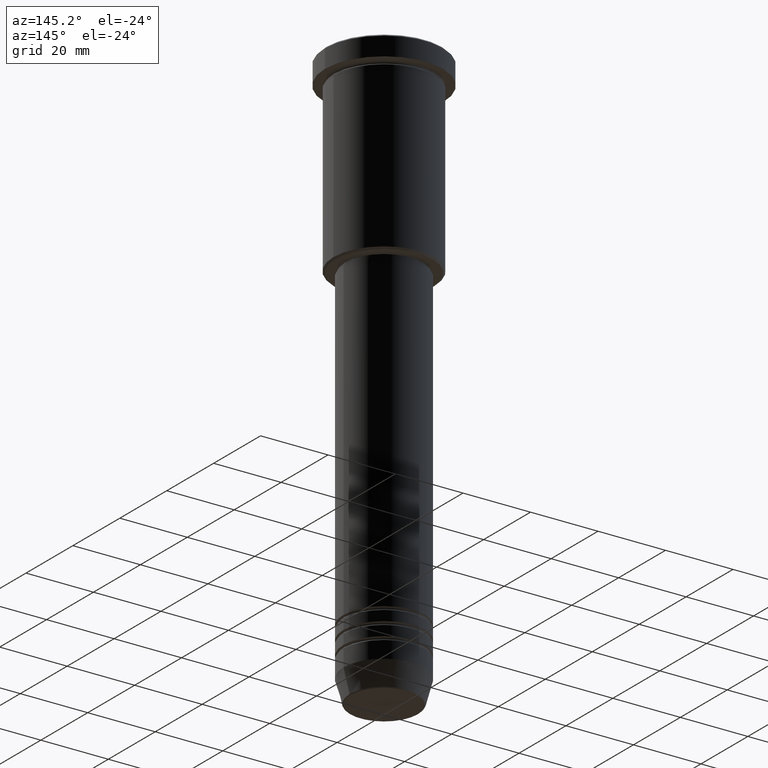
[diagram: clean part render]
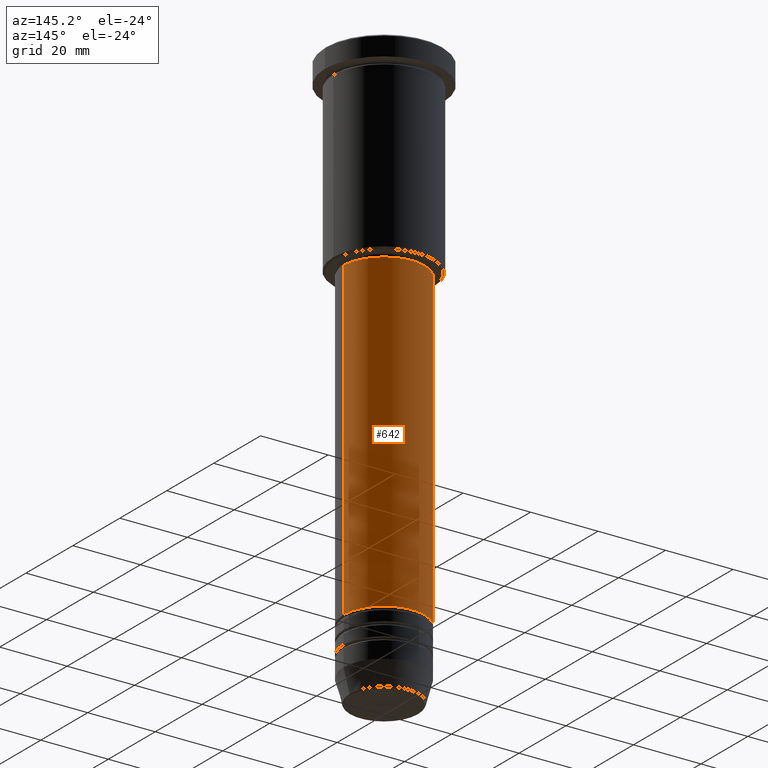
[diagram: same view with one face highlighted and labeled with its STEP entity id]
A machine part, auxiliary view. The second image highlights one B-rep face of the part: STEP entity #642.
In plain terms, the highlighted cylindrical surface (partial cylindrical patch) has radius 12 mm, axis along (-0, -0, 1).
Its self-contained STEP definition (entity closure, byte-faithful):
#3 = CARTESIAN_POINT ( 'NONE',  ( 12.00000000000000000, 0.000000000000000000, -56.99999999999998579 ) ) ;
#23 = CARTESIAN_POINT ( 'NONE',  ( 12.00000000000000000, 0.000000000000000000, -149.9999999999999147 ) ) ;
#40 = VERTEX_POINT ( 'NONE', #3 ) ;
#50 = CIRCLE ( 'NONE', #485, 12.00000000000000000 ) ;
#75 = DIRECTION ( 'NONE',  ( -0.000000000000000000, -0.000000000000000000, 1.000000000000000000 ) ) ;
#80 = DIRECTION ( 'NONE',  ( -0.000000000000000000, -0.000000000000000000, 1.000000000000000000 ) ) ;
#84 = LINE ( 'NONE', #1061, #833 ) ;
#124 = CARTESIAN_POINT ( 'NONE',  ( -12.00000000000000000, 1.469576158976823947E-15, -149.9999999999999147 ) ) ;
#173 = CYLINDRICAL_SURFACE ( 'NONE', #637, 12.00000000000000000 ) ;
#178 = DIRECTION ( 'NONE',  ( -0.000000000000000000, -0.000000000000000000, 1.000000000000000000 ) ) ;
#186 = AXIS2_PLACEMENT_3D ( 'NONE', #440, #178, #530 ) ;
#202 = VERTEX_POINT ( 'NONE', #124 ) ;
#272 = ORIENTED_EDGE ( 'NONE', *, *, #1130, .F. ) ;
#275 = LINE ( 'NONE', #628, #794 ) ;
#352 = ORIENTED_EDGE ( 'NONE', *, *, #550, .T. ) ;
#354 = CARTESIAN_POINT ( 'NONE',  ( 0.000000000000000000, 0.000000000000000000, -56.99999999999998579 ) ) ;
#437 = ORIENTED_EDGE ( 'NONE', *, *, #1123, .F. ) ;
#440 = CARTESIAN_POINT ( 'NONE',  ( 0.000000000000000000, 0.000000000000000000, -149.9999999999999147 ) ) ;
#455 = CARTESIAN_POINT ( 'NONE',  ( -12.00000000000000000, 1.469576158976823947E-15, -56.99999999999998579 ) ) ;
#456 = ORIENTED_EDGE ( 'NONE', *, *, #657, .T. ) ;
#485 = AXIS2_PLACEMENT_3D ( 'NONE', #354, #1085, #709 ) ;
#526 = VERTEX_POINT ( 'NONE', #455 ) ;
#530 = DIRECTION ( 'NONE',  ( 1.000000000000000000, 0.000000000000000000, 0.000000000000000000 ) ) ;
#534 = FACE_OUTER_BOUND ( 'NONE', #898, .T. ) ;
#550 = EDGE_CURVE ( 'NONE', #202, #526, #84, .T. ) ;
#615 = DIRECTION ( 'NONE',  ( -0.000000000000000000, -0.000000000000000000, 1.000000000000000000 ) ) ;
#628 = CARTESIAN_POINT ( 'NONE',  ( 12.00000000000000000, 0.000000000000000000, 0.000000000000000000 ) ) ;
#637 = AXIS2_PLACEMENT_3D ( 'NONE', #892, #80, #987 ) ;
#642 = ADVANCED_FACE ( 'NONE', ( #534 ), #173, .T. ) ;
#657 = EDGE_CURVE ( 'NONE', #698, #202, #1175, .T. ) ;
#698 = VERTEX_POINT ( 'NONE', #23 ) ;
#709 = DIRECTION ( 'NONE',  ( 1.000000000000000000, 0.000000000000000000, 0.000000000000000000 ) ) ;
#794 = VECTOR ( 'NONE', #615, 1000.000000000000000 ) ;
#833 = VECTOR ( 'NONE', #75, 1000.000000000000000 ) ;
#892 = CARTESIAN_POINT ( 'NONE',  ( 0.000000000000000000, 0.000000000000000000, 0.000000000000000000 ) ) ;
#898 = EDGE_LOOP ( 'NONE', ( #456, #352, #437, #272 ) ) ;
#987 = DIRECTION ( 'NONE',  ( 1.000000000000000000, 0.000000000000000000, 0.000000000000000000 ) ) ;
#1061 = CARTESIAN_POINT ( 'NONE',  ( -12.00000000000000000, 1.469576158976823947E-15, 0.000000000000000000 ) ) ;
#1085 = DIRECTION ( 'NONE',  ( -0.000000000000000000, -0.000000000000000000, 1.000000000000000000 ) ) ;
#1123 = EDGE_CURVE ( 'NONE', #40, #526, #50, .T. ) ;
#1130 = EDGE_CURVE ( 'NONE', #698, #40, #275, .T. ) ;
#1175 = CIRCLE ( 'NONE', #186, 12.00000000000000000 ) ;